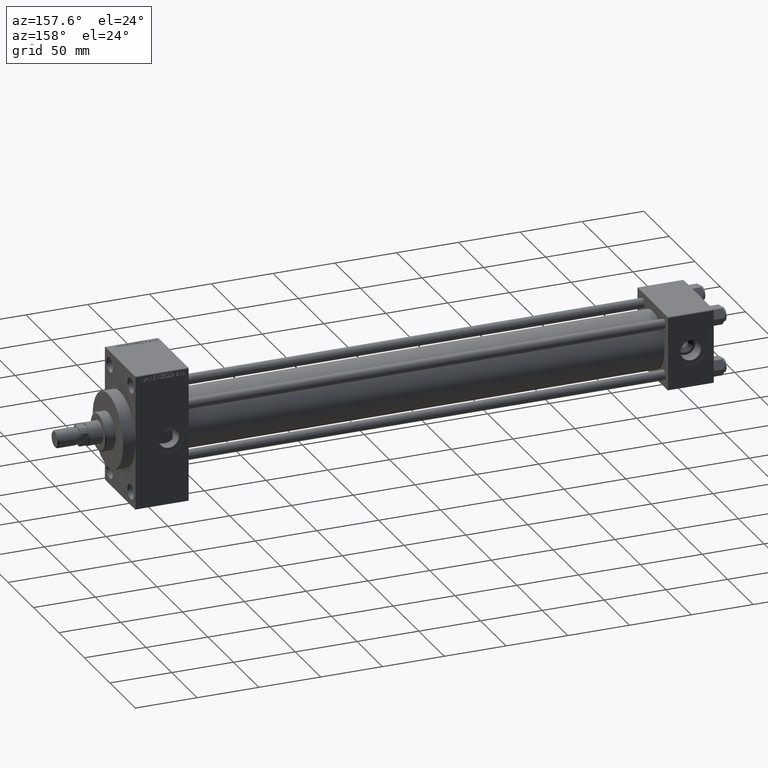
[diagram: clean part render]
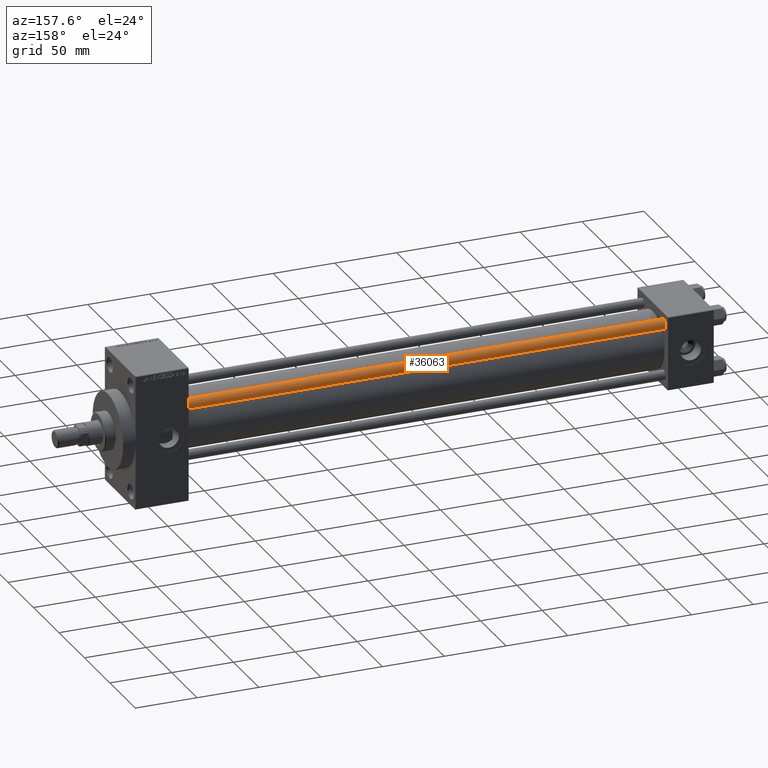
[diagram: same view with one face highlighted and labeled with its STEP entity id]
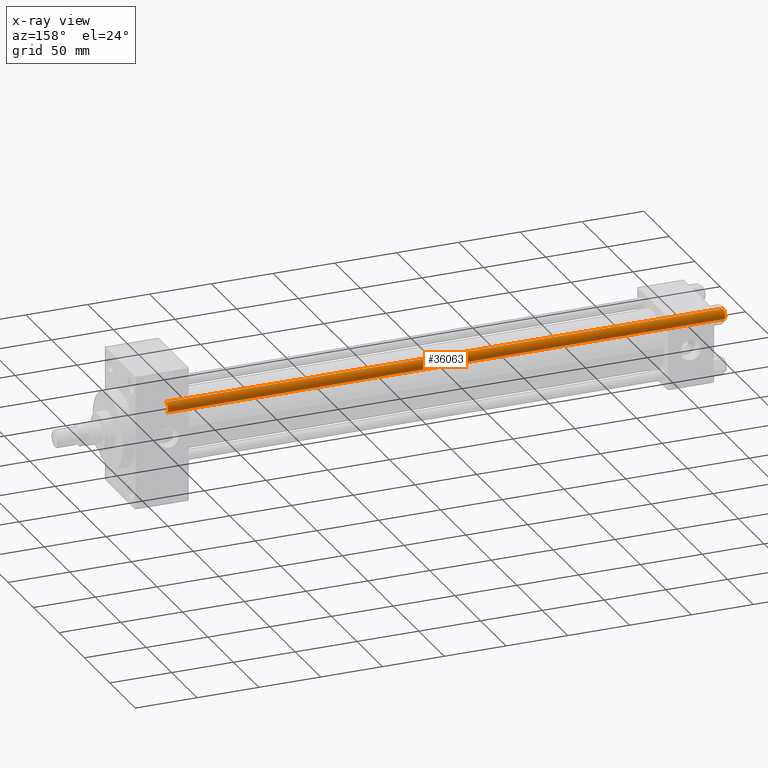
[diagram: x-ray of the same camera — body ghosted, the highlighted face saturated]
A machine part, auxiliary view. The second image highlights one B-rep face of the part: STEP entity #36063.
The next image is the same camera in x-ray: the body ghosted, the highlighted face saturated — about 0% of this face is hidden behind the body in this view.
In plain terms, the highlighted cylindrical surface (edge-blend (fillet) strip) has radius 4 mm, axis along (-1, -0, 0).
Its self-contained STEP definition (entity closure, byte-faithful):
#301 = EDGE_CURVE ( 'NONE', #46258, #46580, #28033, .T. ) ;
#1187 = AXIS2_PLACEMENT_3D ( 'NONE', #29998, #15021, #18878 ) ;
#1966 = CARTESIAN_POINT ( 'NONE',  ( 4.000000000000000000, 4.898587196589412829E-16, 451.5000000000000000 ) ) ;
#3549 = VECTOR ( 'NONE', #28690, 1000.000000000000000 ) ;
#4562 = VECTOR ( 'NONE', #42087, 1000.000000000000000 ) ;
#4765 = CARTESIAN_POINT ( 'NONE',  ( -4.000000000000000000, 0.000000000000000000, 0.5000000000000004441 ) ) ;
#5050 = CIRCLE ( 'NONE', #1187, 4.000000000000000000 ) ;
#5653 = LINE ( 'NONE', #35552, #4562 ) ;
#8793 = AXIS2_PLACEMENT_3D ( 'NONE', #19375, #33165, #14805 ) ;
#10620 = AXIS2_PLACEMENT_3D ( 'NONE', #45269, #41172, #25731 ) ;
#13953 = LINE ( 'NONE', #16867, #3549 ) ;
#14805 = DIRECTION ( 'NONE',  ( 1.000000000000000000, 0.000000000000000000, 0.000000000000000000 ) ) ;
#15021 = DIRECTION ( 'NONE',  ( -0.000000000000000000, -0.000000000000000000, 1.000000000000000000 ) ) ;
#16507 = ORIENTED_EDGE ( 'NONE', *, *, #34718, .T. ) ;
#16867 = CARTESIAN_POINT ( 'NONE',  ( -4.000000000000000000, 0.000000000000000000, 452.0000000000000000 ) ) ;
#18878 = DIRECTION ( 'NONE',  ( 1.000000000000000000, 0.000000000000000000, 0.000000000000000000 ) ) ;
#19375 = CARTESIAN_POINT ( 'NONE',  ( 0.000000000000000000, 0.000000000000000000, 451.5000000000000000 ) ) ;
#20736 = EDGE_LOOP ( 'NONE', ( #47584, #16507, #27449, #22528 ) ) ;
#22528 = ORIENTED_EDGE ( 'NONE', *, *, #28487, .F. ) ;
#25731 = DIRECTION ( 'NONE',  ( -1.000000000000000000, 0.000000000000000000, 0.000000000000000000 ) ) ;
#25888 = EDGE_CURVE ( 'NONE', #36547, #34354, #5050, .T. ) ;
#27449 = ORIENTED_EDGE ( 'NONE', *, *, #25888, .T. ) ;
#28033 = CIRCLE ( 'NONE', #8793, 4.000000000000000000 ) ;
#28487 = EDGE_CURVE ( 'NONE', #46258, #34354, #13953, .T. ) ;
#28690 = DIRECTION ( 'NONE',  ( -0.000000000000000000, -0.000000000000000000, -1.000000000000000000 ) ) ;
#29998 = CARTESIAN_POINT ( 'NONE',  ( 0.000000000000000000, 0.000000000000000000, 0.5000000000000004441 ) ) ;
#33165 = DIRECTION ( 'NONE',  ( 0.000000000000000000, 0.000000000000000000, -1.000000000000000000 ) ) ;
#33938 = CYLINDRICAL_SURFACE ( 'NONE', #10620, 4.000000000000000000 ) ;
#34180 = FACE_OUTER_BOUND ( 'NONE', #20736, .T. ) ;
#34354 = VERTEX_POINT ( 'NONE', #4765 ) ;
#34718 = EDGE_CURVE ( 'NONE', #46580, #36547, #5653, .T. ) ;
#35552 = CARTESIAN_POINT ( 'NONE',  ( 4.000000000000000000, 4.898587196589412829E-16, 452.0000000000000000 ) ) ;
#35896 = CARTESIAN_POINT ( 'NONE',  ( -4.000000000000000000, 0.000000000000000000, 451.5000000000000000 ) ) ;
#36063 = ADVANCED_FACE ( 'NONE', ( #34180 ), #33938, .T. ) ;
#36547 = VERTEX_POINT ( 'NONE', #41250 ) ;
#41172 = DIRECTION ( 'NONE',  ( -0.000000000000000000, -0.000000000000000000, -1.000000000000000000 ) ) ;
#41250 = CARTESIAN_POINT ( 'NONE',  ( 4.000000000000000000, 4.898587196589412829E-16, 0.5000000000000004441 ) ) ;
#42087 = DIRECTION ( 'NONE',  ( -0.000000000000000000, -0.000000000000000000, -1.000000000000000000 ) ) ;
#45269 = CARTESIAN_POINT ( 'NONE',  ( 0.000000000000000000, 0.000000000000000000, 452.0000000000000000 ) ) ;
#46258 = VERTEX_POINT ( 'NONE', #35896 ) ;
#46580 = VERTEX_POINT ( 'NONE', #1966 ) ;
#47584 = ORIENTED_EDGE ( 'NONE', *, *, #301, .T. ) ;